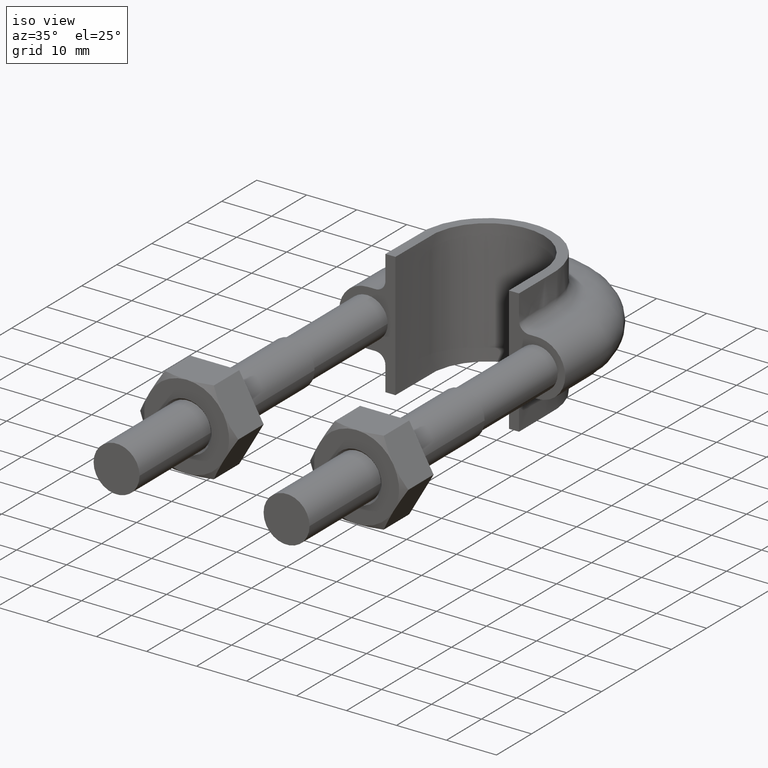
[diagram: clean part render]
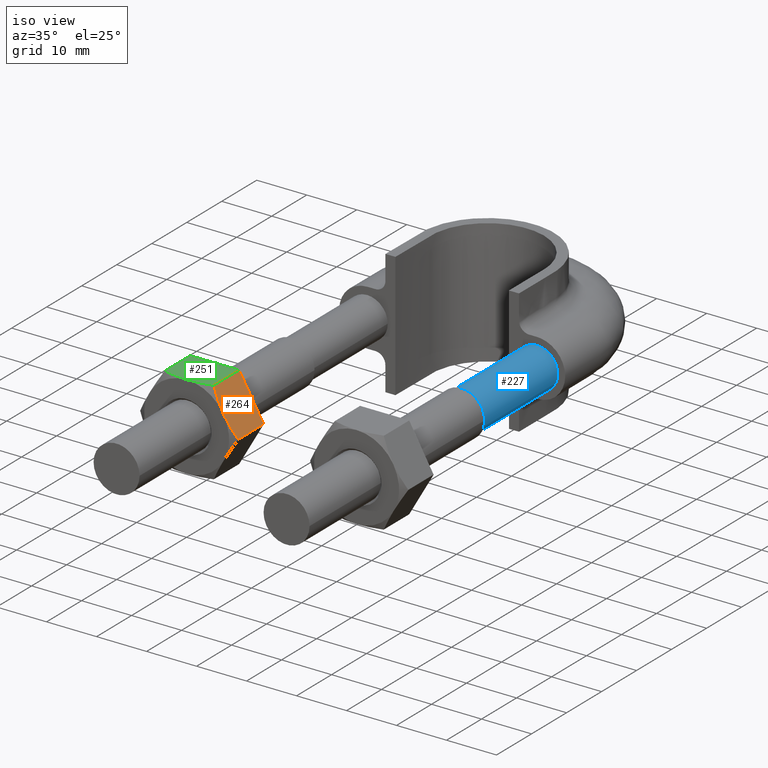
[diagram: same view with three faces highlighted in distinct colors, each labeled with its STEP entity id]
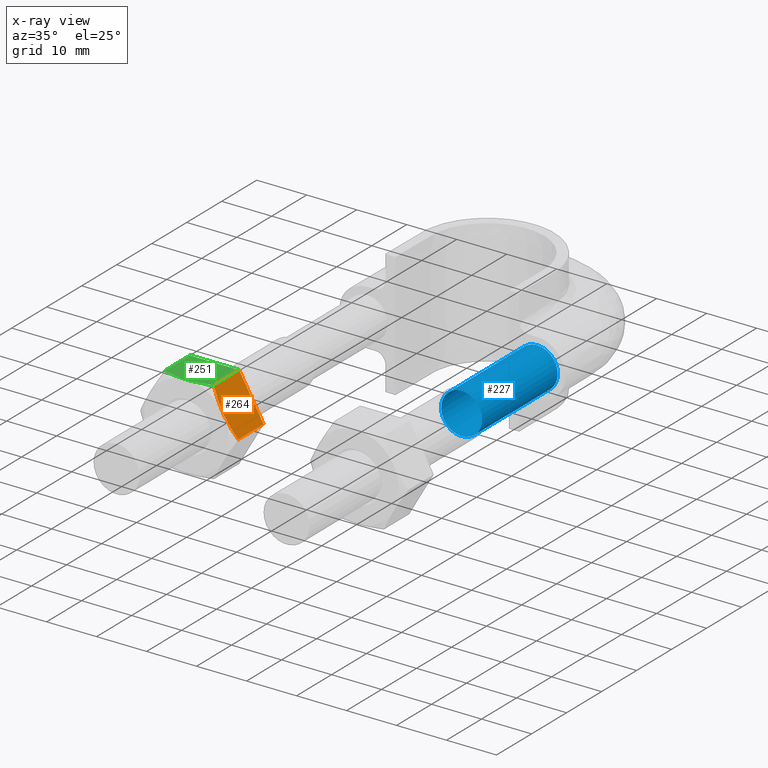
[diagram: x-ray of the same camera — body ghosted, the three highlighted faces saturated]
A machine part, iso view with three faces highlighted in distinct colors.
The next image is the same camera in x-ray (body ghosted, the three faces saturated) — at least one of them is partly hidden behind the body in this view.
Their STEP definitions:

[orange] entity #264 — the highlighted planar face has unit normal (-0.866, 0, -0.5).
#264 = ADVANCED_FACE( '', ( #398 ), #399, .F. );
#398 = FACE_OUTER_BOUND( '', #1477, .T. );
#399 = PLANE( '', #1478 );
#1477 = EDGE_LOOP( '', ( #1863, #1864, #1865, #1866, #1867 ) );
#1478 = AXIS2_PLACEMENT_3D( '', #1868, #1869, #1870 );
#1863 = ORIENTED_EDGE( '', *, *, #2149, .F. );
#1864 = ORIENTED_EDGE( '', *, *, #2182, .F. );
#1865 = ORIENTED_EDGE( '', *, *, #2183, .F. );
#1866 = ORIENTED_EDGE( '', *, *, #2156, .F. );
#1867 = ORIENTED_EDGE( '', *, *, #2176, .F. );
#1868 = CARTESIAN_POINT( '', ( -12.0925227118846, 27.9999999999961, 8.49999999999791 ) );
#1869 = DIRECTION( '', ( -0.866025403784651, 5.90322481815698E-017, -0.499999999999633 ) );
#1870 = DIRECTION( '', ( -0.499999999999633, 3.87595688393716E-016, 0.866025403784651 ) );
#2149 = EDGE_CURVE( '', #2330, #2343, #2344, .T. );
#2156 = EDGE_CURVE( '', #2354, #2356, #2357, .T. );
#2176 = EDGE_CURVE( '', #2343, #2354, #2387, .T. );
#2182 = EDGE_CURVE( '', #2395, #2330, #2396, .T. );
#2183 = EDGE_CURVE( '', #2356, #2395, #2397, .F. );
#2330 = VERTEX_POINT( '', #2790 );
#2343 = VERTEX_POINT( '', #2811 );
#2344 = B_SPLINE_CURVE_WITH_KNOTS( '', 3, ( #2812, #2813, #2814, #2815, #2816, #2817, #2818, #2819 ), .UNSPECIFIED., .F., .F., ( 4, 2, 2, 4 ), ( 0.00493529902949373, 0.00616408349151779, 0.00739286795354186, 0.00985043687758999 ), .UNSPECIFIED. );
#2354 = VERTEX_POINT( '', #2830 );
#2356 = VERTEX_POINT( '', #2832 );
#2357 = LINE( '', #2833, #2834 );
#2387 = LINE( '', #2902, #2903 );
#2395 = VERTEX_POINT( '', #2923 );
#2396 = B_SPLINE_CURVE_WITH_KNOTS( '', 3, ( #2924, #2925, #2926, #2927, #2928, #2929 ), .UNSPECIFIED., .F., .F., ( 4, 2, 4 ), ( 7.17194508350792E-007, 0.00246800811200104, 0.00493529902949373 ), .UNSPECIFIED. );
#2397 = LINE( '', #2930, #2931 );
#2790 = CARTESIAN_POINT( '', ( -9.63878406783046, 19.9999999999961, 4.24999999999687 ) );
#2811 = CARTESIAN_POINT( '', ( -12.0775337474801, 20.7505553499426, 8.47403835209653 ) );
#2812 = CARTESIAN_POINT( '', ( -9.63878406783046, 19.9999999999961, 4.24999999999687 ) );
#2813 = CARTESIAN_POINT( '', ( -9.84563888170577, 19.9999999999961, 4.60828304741947 ) );
#2814 = CARTESIAN_POINT( '', ( -10.0535274786314, 20.0177112141181, 4.96835665960921 ) );
#2815 = CARTESIAN_POINT( '', ( -10.4647835686586, 20.0863020976759, 5.68067310245920 ) );
#2816 = CARTESIAN_POINT( '', ( -10.6690446268281, 20.1371114863300, 6.03446363321686 ) );
#2817 = CARTESIAN_POINT( '', ( -11.2782179102196, 20.3331491064616, 7.08958271066555 ) );
#2818 = CARTESIAN_POINT( '', ( -11.6795336334326, 20.5218250443810, 7.78468193314735 ) );
#2819 = CARTESIAN_POINT( '', ( -12.0775337474801, 20.7505553499426, 8.47403835209653 ) );
#2830 = CARTESIAN_POINT( '', ( -12.0775337474801, 27.9999999999961, 8.47403835209652 ) );
#2832 = CARTESIAN_POINT( '', ( -7.20003438818081, 27.9999999999961, 0.0259616478972170 ) );
#2833 = CARTESIAN_POINT( '', ( -7.18878406783226, 27.9999999999961, 0.00647552145208226 ) );
#2834 = VECTOR( '', #3218, 1000.00000000000 );
#2902 = CARTESIAN_POINT( '', ( -12.0775337474801, 27.9999999999961, 8.47403835209652 ) );
#2903 = VECTOR( '', #3243, 1000.00000000000 );
#2923 = CARTESIAN_POINT( '', ( -7.20003438818081, 20.7505553499426, 0.0259616478972192 ) );
#2924 = CARTESIAN_POINT( '', ( -7.20003438818081, 20.7505553499426, 0.0259616478972190 ) );
#2925 = CARTESIAN_POINT( '', ( -7.59908615495257, 20.5212206605116, 0.717139582796710 ) );
#2926 = CARTESIAN_POINT( '', ( -8.00102024814505, 20.3324529479765, 1.41330985350089 ) );
#2927 = CARTESIAN_POINT( '', ( -8.81316570951302, 20.0714150925720, 2.81998705572805 ) );
#2928 = CARTESIAN_POINT( '', ( -9.22343782991212, 19.9999999999961, 3.53059921318902 ) );
#2929 = CARTESIAN_POINT( '', ( -9.63878406783046, 19.9999999999961, 4.24999999999687 ) );
#2930 = CARTESIAN_POINT( '', ( -7.20003438818081, 27.9999999999961, 0.0259616478972170 ) );
#2931 = VECTOR( '', #3249, 1000.00000000000 );
#3218 = DIRECTION( '', ( 0.499999999999633, -3.87595688393716E-016, -0.866025403784651 ) );
#3243 = DIRECTION( '', ( 2.44921270764475E-016, 1.00000000000000, -3.06151588455594E-016 ) );
#3249 = DIRECTION( '', ( 2.44921270764475E-016, 1.00000000000000, -3.06151588455594E-016 ) );

[blue] entity #227 — the highlighted cylindrical surface (bore or boss wall) has radius 4.1 mm, axis along (0, 1, -0).
#227 = ADVANCED_FACE( '', ( #316, #317 ), #318, .T. );
#316 = FACE_OUTER_BOUND( '', #1236, .T. );
#317 = FACE_OUTER_BOUND( '', #1237, .T. );
#318 = CYLINDRICAL_SURFACE( '', #1238, 4.10000000000000 );
#1236 = EDGE_LOOP( '', ( #1618, #1619, #1620, #1621, #1622, #1623, #1624 ) );
#1237 = EDGE_LOOP( '', ( #1625 ) );
#1238 = AXIS2_PLACEMENT_3D( '', #1626, #1627, #1628 );
#1618 = ORIENTED_EDGE( '', *, *, #2109, .T. );
#1619 = ORIENTED_EDGE( '', *, *, #2110, .T. );
#1620 = ORIENTED_EDGE( '', *, *, #2111, .T. );
#1621 = ORIENTED_EDGE( '', *, *, #2112, .T. );
#1622 = ORIENTED_EDGE( '', *, *, #2113, .T. );
#1623 = ORIENTED_EDGE( '', *, *, #2114, .T. );
#1624 = ORIENTED_EDGE( '', *, *, #2115, .T. );
#1625 = ORIENTED_EDGE( '', *, *, #2116, .T. );
#1626 = CARTESIAN_POINT( '', ( 17.0000000000000, 71.6000000000000, -1.01213715143419E-014 ) );
#1627 = DIRECTION( '', ( 2.44921270764475E-016, 1.00000000000000, -3.06151588455594E-016 ) );
#1628 = DIRECTION( '', ( 1.00000000000000, -2.44921270764475E-016, -5.47382212626882E-048 ) );
#2109 = EDGE_CURVE( '', #2279, #2280, #2281, .T. );
#2110 = EDGE_CURVE( '', #2280, #2282, #2283, .T. );
#2111 = EDGE_CURVE( '', #2282, #2284, #2285, .T. );
#2112 = EDGE_CURVE( '', #2284, #2286, #2287, .T. );
#2113 = EDGE_CURVE( '', #2286, #2288, #2289, .T. );
#2114 = EDGE_CURVE( '', #2288, #2290, #2291, .T. );
#2115 = EDGE_CURVE( '', #2290, #2279, #2292, .T. );
#2116 = EDGE_CURVE( '', #2293, #2293, #2294, .F. );
#2279 = VERTEX_POINT( '', #2685 );
#2280 = VERTEX_POINT( '', #2686 );
#2281 = CIRCLE( '', #2687, 4.10000000000000 );
#2282 = VERTEX_POINT( '', #2688 );
#2283 = CIRCLE( '', #2689, 4.10000000000000 );
#2284 = VERTEX_POINT( '', #2690 );
#2285 = CIRCLE( '', #2691, 4.10000000000000 );
#2286 = VERTEX_POINT( '', #2692 );
#2287 = CIRCLE( '', #2693, 4.10000000000000 );
#2288 = VERTEX_POINT( '', #2694 );
#2289 = CIRCLE( '', #2695, 4.10000000000000 );
#2290 = VERTEX_POINT( '', #2696 );
#2291 = CIRCLE( '', #2697, 4.10000000000000 );
#2292 = CIRCLE( '', #2698, 4.10000000000000 );
#2293 = VERTEX_POINT( '', #2699 );
#2294 = CIRCLE( '', #2700, 4.10000000000000 );
#2685 = CARTESIAN_POINT( '', ( 20.6939723583998, 71.6000000000000, 1.77892333038217 ) );
#2686 = CARTESIAN_POINT( '', ( 17.9123358292209, 71.6000000000000, 3.99720443994548 ) );
#2687 = AXIS2_PLACEMENT_3D( '', #3139, #3140, #3141 );
#2688 = CARTESIAN_POINT( '', ( 14.4436918123793, 71.6000000000000, 3.20550907811898 ) );
#2689 = AXIS2_PLACEMENT_3D( '', #3142, #3143, #3144 );
#2690 = CARTESIAN_POINT( '', ( 12.9000000000000, 71.6000000000000, 1.83395593916885E-013 ) );
#2691 = AXIS2_PLACEMENT_3D( '', #3145, #3146, #3147 );
#2692 = CARTESIAN_POINT( '', ( 14.4436918123815, 71.6000000000000, -3.20550907812077 ) );
#2693 = AXIS2_PLACEMENT_3D( '', #3148, #3149, #3150 );
#2694 = CARTESIAN_POINT( '', ( 17.9123358292212, 71.6000000000000, -3.99720443994540 ) );
#2695 = AXIS2_PLACEMENT_3D( '', #3151, #3152, #3153 );
#2696 = CARTESIAN_POINT( '', ( 20.6939723584000, 71.6000000000000, -1.77892333038189 ) );
#2697 = AXIS2_PLACEMENT_3D( '', #3154, #3155, #3156 );
#2698 = AXIS2_PLACEMENT_3D( '', #3157, #3158, #3159 );
#2699 = CARTESIAN_POINT( '', ( 17.0000000000000, 50.0000000000000, 4.10000000000000 ) );
#2700 = AXIS2_PLACEMENT_3D( '', #3160, #3161, #3162 );
#3139 = CARTESIAN_POINT( '', ( 17.0000000000000, 71.6000000000000, -1.01213715143419E-014 ) );
#3140 = DIRECTION( '', ( -2.44921270764475E-016, -1.00000000000000, 3.06151588455594E-016 ) );
#3141 = DIRECTION( '', ( 1.00000000000000, -2.44921270764475E-016, -5.47382212626882E-048 ) );
#3142 = CARTESIAN_POINT( '', ( 17.0000000000000, 71.6000000000000, -1.01213715143419E-014 ) );
#3143 = DIRECTION( '', ( -2.44921270764475E-016, -1.00000000000000, 3.06151588455594E-016 ) );
#3144 = DIRECTION( '', ( 1.00000000000000, -2.44921270764475E-016, -5.47382212626882E-048 ) );
#3145 = CARTESIAN_POINT( '', ( 17.0000000000000, 71.6000000000000, -1.01213715143419E-014 ) );
#3146 = DIRECTION( '', ( -2.44921270764475E-016, -1.00000000000000, 3.06151588455594E-016 ) );
#3147 = DIRECTION( '', ( 1.00000000000000, -2.44921270764475E-016, -5.47382212626882E-048 ) );
#3148 = CARTESIAN_POINT( '', ( 17.0000000000000, 71.6000000000000, -1.01213715143419E-014 ) );
#3149 = DIRECTION( '', ( -2.44921270764475E-016, -1.00000000000000, 3.06151588455594E-016 ) );
#3150 = DIRECTION( '', ( 1.00000000000000, -2.44921270764475E-016, -5.47382212626882E-048 ) );
#3151 = CARTESIAN_POINT( '', ( 17.0000000000000, 71.6000000000000, -1.01213715143419E-014 ) );
#3152 = DIRECTION( '', ( -2.44921270764475E-016, -1.00000000000000, 3.06151588455594E-016 ) );
#3153 = DIRECTION( '', ( 1.00000000000000, -2.44921270764475E-016, -5.47382212626882E-048 ) );
#3154 = CARTESIAN_POINT( '', ( 17.0000000000000, 71.6000000000000, -1.01213715143419E-014 ) );
#3155 = DIRECTION( '', ( -2.44921270764475E-016, -1.00000000000000, 3.06151588455594E-016 ) );
#3156 = DIRECTION( '', ( 1.00000000000000, -2.44921270764475E-016, -5.47382212626882E-048 ) );
#3157 = CARTESIAN_POINT( '', ( 17.0000000000000, 71.6000000000000, -1.01213715143419E-014 ) );
#3158 = DIRECTION( '', ( -2.44921270764475E-016, -1.00000000000000, 3.06151588455594E-016 ) );
#3159 = DIRECTION( '', ( 1.00000000000000, -2.44921270764475E-016, -5.47382212626882E-048 ) );
#3160 = CARTESIAN_POINT( '', ( 17.0000000000000, 50.0000000000000, -3.50849720370111E-015 ) );
#3161 = DIRECTION( '', ( -2.44921270764475E-016, -1.00000000000000, 3.06151588455594E-016 ) );
#3162 = DIRECTION( '', ( 3.74915180455534E-032, 3.06151588455594E-016, 1.00000000000000 ) );

[green] entity #251 — the highlighted planar face has unit normal (-0, -0, -1).
#251 = ADVANCED_FACE( '', ( #371 ), #372, .F. );
#371 = FACE_OUTER_BOUND( '', #1450, .T. );
#372 = PLANE( '', #1451 );
#1450 = EDGE_LOOP( '', ( #1758, #1759, #1760, #1761, #1762 ) );
#1451 = AXIS2_PLACEMENT_3D( '', #1763, #1764, #1765 );
#1758 = ORIENTED_EDGE( '', *, *, #2138, .F. );
#1759 = ORIENTED_EDGE( '', *, *, #2145, .F. );
#1760 = ORIENTED_EDGE( '', *, *, #2146, .F. );
#1761 = ORIENTED_EDGE( '', *, *, #2147, .F. );
#1762 = ORIENTED_EDGE( '', *, *, #2148, .F. );
#1763 = CARTESIAN_POINT( '', ( -21.9074772881082, 27.9999999999961, 8.50000000000207 ) );
#1764 = DIRECTION( '', ( -4.24049684255578E-013, -3.06151588455490E-016, -1.00000000000000 ) );
#1765 = DIRECTION( '', ( -1.00000000000000, 2.44921270764605E-016, 4.24049684255578E-013 ) );
#2138 = EDGE_CURVE( '', #2322, #2318, #2324, .T. );
#2145 = EDGE_CURVE( '', #2336, #2322, #2337, .T. );
#2146 = EDGE_CURVE( '', #2338, #2336, #2339, .F. );
#2147 = EDGE_CURVE( '', #2340, #2338, #2341, .T. );
#2148 = EDGE_CURVE( '', #2318, #2340, #2342, .T. );
#2318 = VERTEX_POINT( '', #2766 );
#2322 = VERTEX_POINT( '', #2775 );
#2324 = B_SPLINE_CURVE_WITH_KNOTS( '', 3, ( #2777, #2778, #2779, #2780, #2781, #2782, #2783, #2784 ), .UNSPECIFIED., .F., .F., ( 4, 2, 2, 4 ), ( 0.00493506423428098, 0.00616384870526320, 0.00739263317624542, 0.00985020211820987 ), .UNSPECIFIED. );
#2336 = VERTEX_POINT( '', #2796 );
#2337 = B_SPLINE_CURVE_WITH_KNOTS( '', 3, ( #2797, #2798, #2799, #2800, #2801, #2802 ), .UNSPECIFIED., .F., .F., ( 4, 2, 4 ), ( 4.83064900408916E-007, 0.00246777364959070, 0.00493506423428098 ), .UNSPECIFIED. );
#2338 = VERTEX_POINT( '', #2803 );
#2339 = LINE( '', #2804, #2805 );
#2340 = VERTEX_POINT( '', #2806 );
#2341 = LINE( '', #2807, #2808 );
#2342 = LINE( '', #2809, #2810 );
#2766 = CARTESIAN_POINT( '', ( -21.8774993592993, 20.7505553499426, 8.50000000000206 ) );
#2775 = CARTESIAN_POINT( '', ( -16.9999999999964, 19.9999999999961, 8.49999999999999 ) );
#2777 = CARTESIAN_POINT( '', ( -16.9999999999964, 19.9999999999961, 8.49999999999999 ) );
#2778 = CARTESIAN_POINT( '', ( -17.4137089432098, 19.9999999999961, 8.50000000000017 ) );
#2779 = CARTESIAN_POINT( '', ( -17.8294869254239, 20.0177112081724, 8.50000000000034 ) );
#2780 = CARTESIAN_POINT( '', ( -18.6519999770187, 20.0863021936173, 8.50000000000069 ) );
#2781 = CARTESIAN_POINT( '', ( -19.0605223337794, 20.1371116504155, 8.50000000000087 ) );
#2782 = CARTESIAN_POINT( '', ( -20.2788691256634, 20.3331494013874, 8.50000000000138 ) );
#2783 = CARTESIAN_POINT( '', ( -21.0815000650856, 20.5218253127316, 8.50000000000172 ) );
#2784 = CARTESIAN_POINT( '', ( -21.8774993592993, 20.7505553499426, 8.50000000000206 ) );
#2796 = CARTESIAN_POINT( '', ( -12.1225006406935, 20.7505553499426, 8.49999999999793 ) );
#2797 = CARTESIAN_POINT( '', ( -12.1225006406935, 20.7505553499426, 8.49999999999792 ) );
#2798 = CARTESIAN_POINT( '', ( -12.9206053692552, 20.5212203171238, 8.49999999999826 ) );
#2799 = CARTESIAN_POINT( '', ( -13.7244743057391, 20.3324525365401, 8.49999999999860 ) );
#2800 = CARTESIAN_POINT( '', ( -15.3487653825404, 20.0714148540547, 8.49999999999929 ) );
#2801 = CARTESIAN_POINT( '', ( -16.1693090167546, 19.9999999999961, 8.49999999999964 ) );
#2802 = CARTESIAN_POINT( '', ( -16.9999999999964, 19.9999999999961, 8.49999999999999 ) );
#2803 = CARTESIAN_POINT( '', ( -12.1225006406935, 27.9999999999961, 8.49999999999792 ) );
#2804 = CARTESIAN_POINT( '', ( -12.1225006406935, 27.9999999999961, 8.49999999999792 ) );
#2805 = VECTOR( '', #3199, 1000.00000000000 );
#2806 = CARTESIAN_POINT( '', ( -21.8774993592993, 27.9999999999961, 8.50000000000206 ) );
#2807 = CARTESIAN_POINT( '', ( -21.8999999999964, 27.9999999999961, 8.50000000000207 ) );
#2808 = VECTOR( '', #3200, 1000.00000000000 );
#2809 = CARTESIAN_POINT( '', ( -21.8774993592993, 27.9999999999961, 8.50000000000206 ) );
#2810 = VECTOR( '', #3201, 1000.00000000000 );
#3199 = DIRECTION( '', ( 2.44921270764475E-016, 1.00000000000000, -3.06151588455594E-016 ) );
#3200 = DIRECTION( '', ( 1.00000000000000, -2.44921270764605E-016, -4.24049684255579E-013 ) );
#3201 = DIRECTION( '', ( 2.44921270764475E-016, 1.00000000000000, -3.06151588455594E-016 ) );